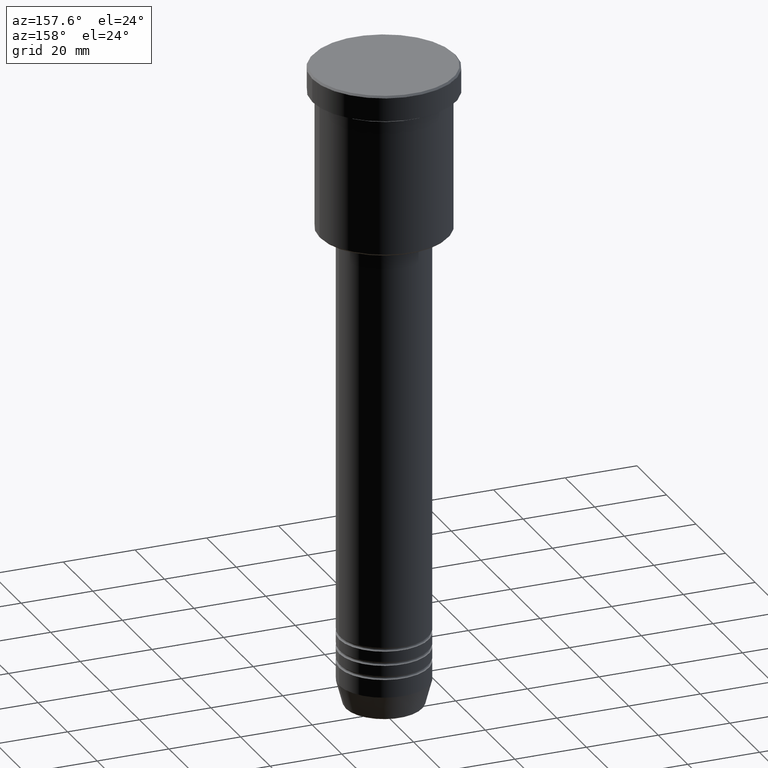
[diagram: clean part render]
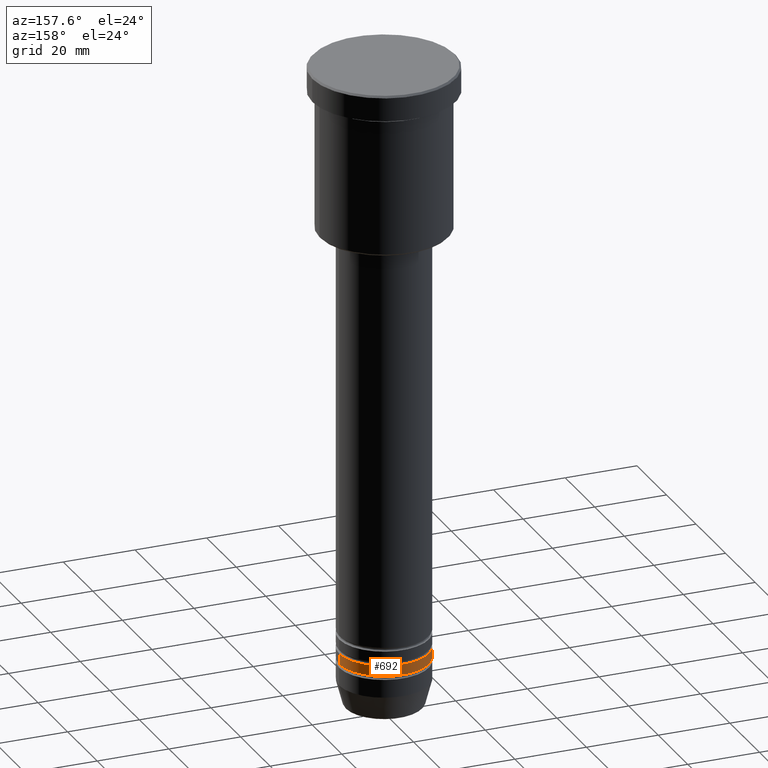
[diagram: same view with one face highlighted and labeled with its STEP entity id]
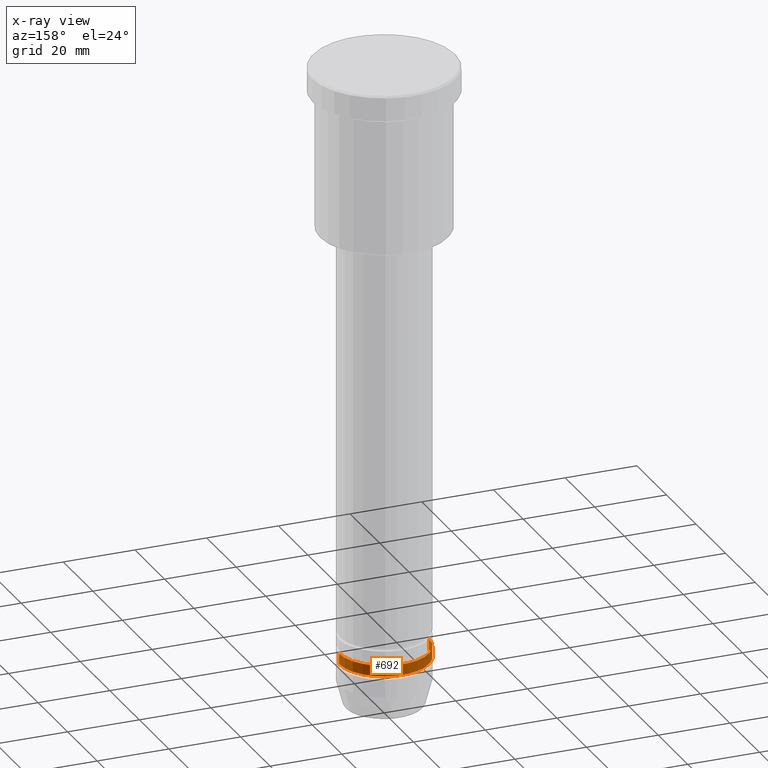
[diagram: x-ray of the same camera — body ghosted, the highlighted face saturated]
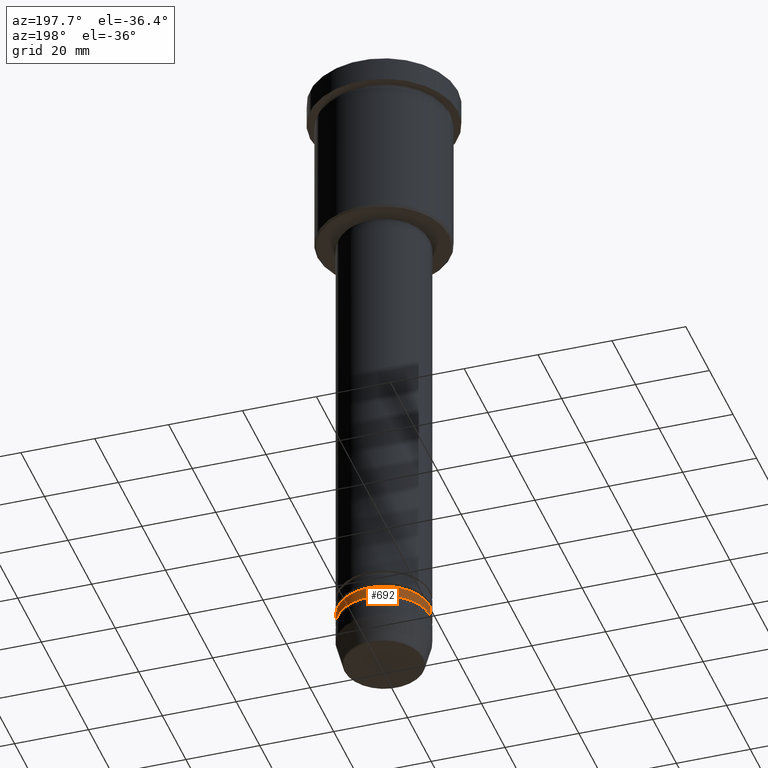
[diagram: same view with one face highlighted and labeled with its STEP entity id]
A machine part, auxiliary view. The second image highlights one B-rep face of the part: STEP entity #692.
The next image is the same camera in x-ray: the body ghosted, the highlighted face saturated — about 0% of this face is hidden behind the body in this view.
A second angle (auxiliary view) of the same face is appended — the face is thin or edge-on in the first view.
In plain terms, the highlighted cylindrical surface (partial cylindrical patch) has radius 12.5 mm, axis along (-0, -0, 1).
Its self-contained STEP definition (entity closure, byte-faithful):
#2 = ORIENTED_EDGE ( 'NONE', *, *, #6, .T. ) ;
#4 = CARTESIAN_POINT ( 'NONE',  ( 12.50000000000000000, 0.000000000000000000, -166.9999999999999716 ) ) ;
#6 = EDGE_CURVE ( 'NONE', #280, #966, #1162, .T. ) ;
#26 = CARTESIAN_POINT ( 'NONE',  ( 0.000000000000000000, 0.000000000000000000, -166.9999999999999716 ) ) ;
#56 = VECTOR ( 'NONE', #821, 1000.000000000000000 ) ;
#67 = CARTESIAN_POINT ( 'NONE',  ( 12.50000000000000000, 0.000000000000000000, -164.0000000000000000 ) ) ;
#87 = DIRECTION ( 'NONE',  ( -0.000000000000000000, -0.000000000000000000, 1.000000000000000000 ) ) ;
#101 = EDGE_CURVE ( 'NONE', #153, #549, #678, .T. ) ;
#118 = DIRECTION ( 'NONE',  ( 1.000000000000000000, 0.000000000000000000, 0.000000000000000000 ) ) ;
#153 = VERTEX_POINT ( 'NONE', #67 ) ;
#164 = VECTOR ( 'NONE', #1182, 1000.000000000000000 ) ;
#171 = CARTESIAN_POINT ( 'NONE',  ( -12.50000000000000000, 1.530808498934191521E-15, -164.0000000000000000 ) ) ;
#211 = ORIENTED_EDGE ( 'NONE', *, *, #1065, .T. ) ;
#223 = AXIS2_PLACEMENT_3D ( 'NONE', #300, #940, #118 ) ;
#233 = CARTESIAN_POINT ( 'NONE',  ( 0.000000000000000000, 0.000000000000000000, -164.0000000000000000 ) ) ;
#280 = VERTEX_POINT ( 'NONE', #4 ) ;
#300 = CARTESIAN_POINT ( 'NONE',  ( 0.000000000000000000, 0.000000000000000000, 0.000000000000000000 ) ) ;
#445 = LINE ( 'NONE', #459, #56 ) ;
#459 = CARTESIAN_POINT ( 'NONE',  ( 12.50000000000000000, 0.000000000000000000, 0.000000000000000000 ) ) ;
#497 = ORIENTED_EDGE ( 'NONE', *, *, #101, .F. ) ;
#518 = DIRECTION ( 'NONE',  ( 1.000000000000000000, 0.000000000000000000, 0.000000000000000000 ) ) ;
#548 = LINE ( 'NONE', #904, #164 ) ;
#549 = VERTEX_POINT ( 'NONE', #171 ) ;
#577 = EDGE_LOOP ( 'NONE', ( #2, #211, #497, #839 ) ) ;
#585 = FACE_OUTER_BOUND ( 'NONE', #577, .T. ) ;
#678 = CIRCLE ( 'NONE', #869, 12.50000000000000000 ) ;
#692 = ADVANCED_FACE ( 'NONE', ( #585 ), #1117, .T. ) ;
#729 = CARTESIAN_POINT ( 'NONE',  ( -12.50000000000000000, 1.530808498934191521E-15, -166.9999999999999716 ) ) ;
#817 = DIRECTION ( 'NONE',  ( 1.000000000000000000, 0.000000000000000000, 0.000000000000000000 ) ) ;
#821 = DIRECTION ( 'NONE',  ( -0.000000000000000000, -0.000000000000000000, 1.000000000000000000 ) ) ;
#839 = ORIENTED_EDGE ( 'NONE', *, *, #956, .F. ) ;
#869 = AXIS2_PLACEMENT_3D ( 'NONE', #233, #970, #518 ) ;
#904 = CARTESIAN_POINT ( 'NONE',  ( -12.50000000000000000, 1.530808498934191521E-15, 0.000000000000000000 ) ) ;
#930 = AXIS2_PLACEMENT_3D ( 'NONE', #26, #87, #817 ) ;
#940 = DIRECTION ( 'NONE',  ( -0.000000000000000000, -0.000000000000000000, 1.000000000000000000 ) ) ;
#956 = EDGE_CURVE ( 'NONE', #280, #153, #445, .T. ) ;
#966 = VERTEX_POINT ( 'NONE', #729 ) ;
#970 = DIRECTION ( 'NONE',  ( -0.000000000000000000, -0.000000000000000000, 1.000000000000000000 ) ) ;
#1065 = EDGE_CURVE ( 'NONE', #966, #549, #548, .T. ) ;
#1117 = CYLINDRICAL_SURFACE ( 'NONE', #223, 12.50000000000000000 ) ;
#1162 = CIRCLE ( 'NONE', #930, 12.50000000000000000 ) ;
#1182 = DIRECTION ( 'NONE',  ( -0.000000000000000000, -0.000000000000000000, 1.000000000000000000 ) ) ;